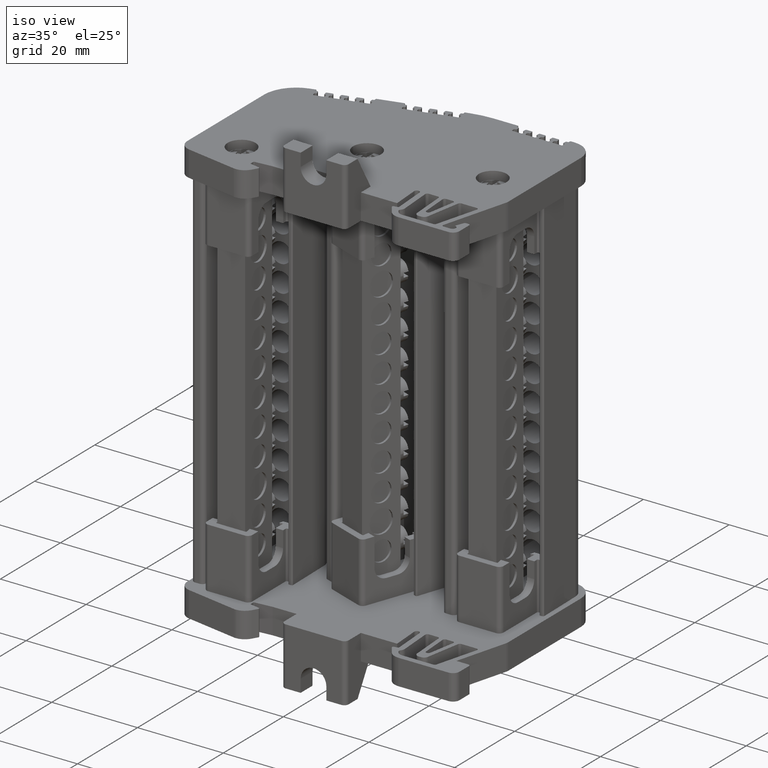
[diagram: clean part render]
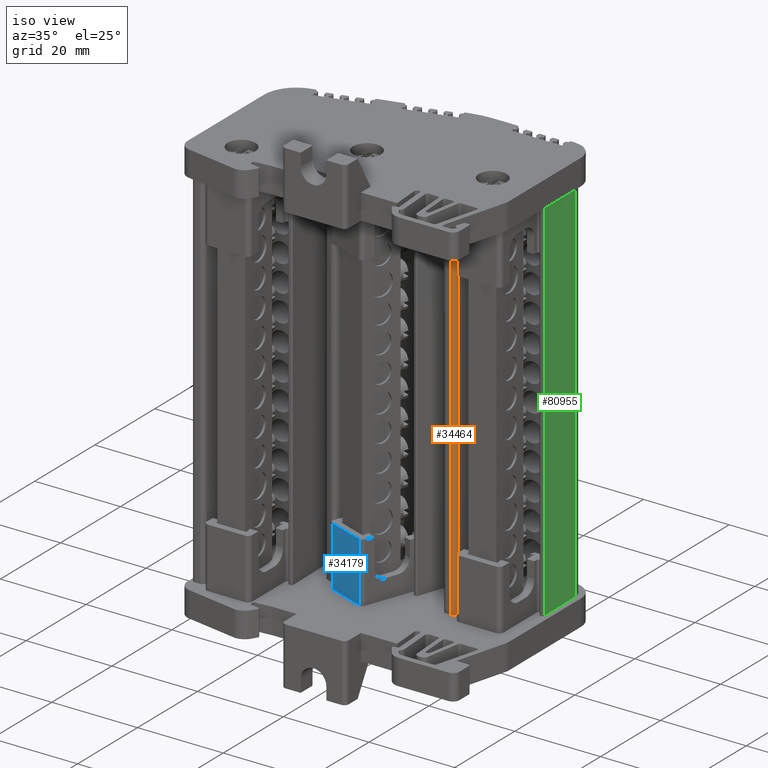
[diagram: same view with three faces highlighted in distinct colors, each labeled with its STEP entity id]
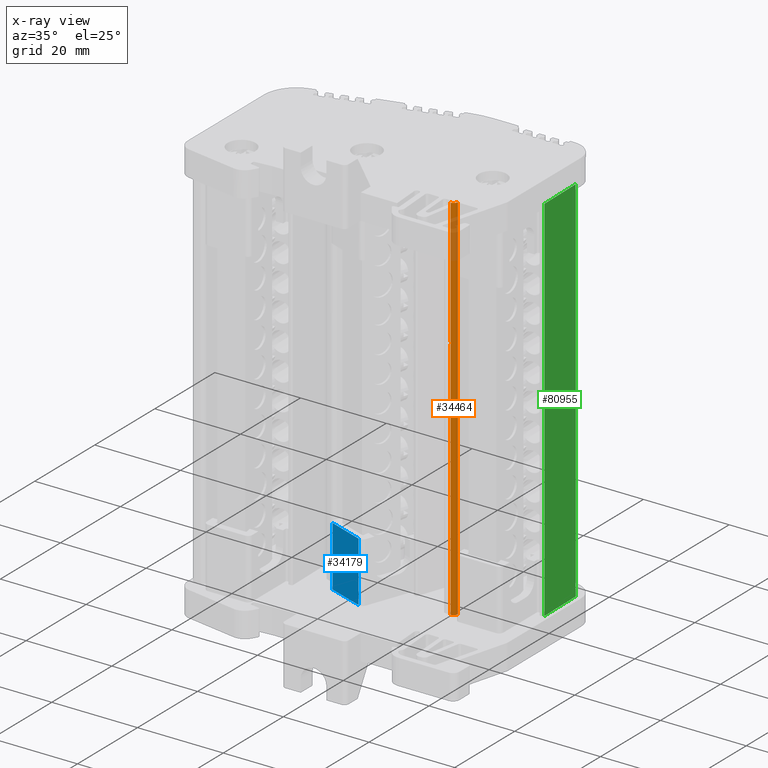
[diagram: x-ray of the same camera — body ghosted, the three highlighted faces saturated]
A machine part, iso view with three faces highlighted in distinct colors.
The next image is the same camera in x-ray (body ghosted, the three faces saturated) — at least one of them is partly hidden behind the body in this view.
Their STEP definitions:

[orange] entity #34464 — the highlighted cylindrical surface (edge-blend (fillet) strip) has radius 1.0034 mm, axis along (-0, -0, 1).
#7319 = CARTESIAN_POINT ( 'NONE',  ( -280.0525719823299900, 209.7134305445411500, 100.3119239351455100 ) ) ;
#7328 = CARTESIAN_POINT ( 'NONE',  ( -280.0525719823293100, 209.7134305445423800, 13.41293318655226800 ) ) ;
#9914 = VECTOR ( 'NONE', #23782, 1000.000000000000000 ) ;
#10150 = VECTOR ( 'NONE', #25322, 1000.000000000000000 ) ;
#10837 = CARTESIAN_POINT ( 'NONE',  ( -281.0557801778426200, 208.7275805964801800, 13.41293318655225700 ) ) ;
#10905 = CARTESIAN_POINT ( 'NONE',  ( -281.0557801778431900, 208.7275805964786500, 100.3119239351455700 ) ) ;
#10906 = CARTESIAN_POINT ( 'NONE',  ( -281.0557801778430200, 208.7275805964791900, 70.85366020682769800 ) ) ;
#10910 = CARTESIAN_POINT ( 'NONE',  ( -281.0470236038332200, 208.7275997017544900, 70.85366020682769800 ) ) ;
#13887 = CARTESIAN_POINT ( 'NONE',  ( -281.0557801778430200, 208.7275805964792100, 69.74610781466765300 ) ) ;
#23771 = LINE ( 'NONE', #23773, #9914 ) ;
#23773 = CARTESIAN_POINT ( 'NONE',  ( -281.0557801778428500, 208.7275805964796700, 45.35242454076613000 ) ) ;
#23782 = DIRECTION ( 'NONE',  ( 6.982962677686750300E-015, 1.604252062634165100E-014, -1.000000000000000000 ) ) ;
#24354 = CARTESIAN_POINT ( 'NONE',  ( -281.0499424155214600, 208.7275933335517900, 70.48447607610768300 ) ) ;
#24398 = CARTESIAN_POINT ( 'NONE',  ( -281.0470236038332200, 208.7275997017544900, 70.85366020682769800 ) ) ;
#24400 = CARTESIAN_POINT ( 'NONE',  ( -281.0557801778430200, 208.7275805964792100, 69.74610781466765300 ) ) ;
#24435 = CARTESIAN_POINT ( 'NONE',  ( -281.0528612966820700, 208.7275805964792700, 70.11529194538766800 ) ) ;
#25290 = CARTESIAN_POINT ( 'NONE',  ( -281.0557801778430200, 208.7275805964791900, 70.85366020682769800 ) ) ;
#25320 = LINE ( 'NONE', #25326, #10150 ) ;
#25322 = DIRECTION ( 'NONE',  ( 6.982962677686750300E-015, 1.604252062634165100E-014, -1.000000000000000000 ) ) ;
#25326 = CARTESIAN_POINT ( 'NONE',  ( -281.0557801778428500, 208.7275805964796700, 45.35242454076613000 ) ) ;
#25346 = CARTESIAN_POINT ( 'NONE',  ( -281.0470236038332200, 208.7275997017544900, 70.85366020682769800 ) ) ;
#25405 = CARTESIAN_POINT ( 'NONE',  ( -281.0499424155214600, 208.7275933335517700, 70.85366020682769800 ) ) ;
#25414 = CARTESIAN_POINT ( 'NONE',  ( -281.0528612966820700, 208.7275805964792400, 70.85366020682769800 ) ) ;
#34464 = ADVANCED_FACE ( 'NONE', ( #117636 ), #117706, .T. ) ;
#37848 = ORIENTED_EDGE ( 'NONE', *, *, #111759, .T. ) ;
#37949 = ORIENTED_EDGE ( 'NONE', *, *, #77962, .T. ) ;
#37985 = ORIENTED_EDGE ( 'NONE', *, *, #111773, .T. ) ;
#38044 = ORIENTED_EDGE ( 'NONE', *, *, #111663, .F. ) ;
#38047 = ORIENTED_EDGE ( 'NONE', *, *, #78213, .T. ) ;
#38050 = ORIENTED_EDGE ( 'NONE', *, *, #77824, .T. ) ;
#38146 = ORIENTED_EDGE ( 'NONE', *, *, #78232, .T. ) ;
#40191 = VECTOR ( 'NONE', #44104, 1000.000000000000000 ) ;
#40358 = CIRCLE ( 'NONE', #40361, 1.003361012255010700 ) ;
#40361 = AXIS2_PLACEMENT_3D ( 'NONE', #40683, #41513, #44596 ) ;
#40362 = CIRCLE ( 'NONE', #40379, 1.003361012255010700 ) ;
#40379 = AXIS2_PLACEMENT_3D ( 'NONE', #44602, #44637, #44624 ) ;
#40683 = CARTESIAN_POINT ( 'NONE',  ( -281.0557801778431900, 209.7309416087337900, 100.3119239351455100 ) ) ;
#41513 = DIRECTION ( 'NONE',  ( 6.982962677686750300E-015, 1.604252062634165100E-014, -1.000000000000000000 ) ) ;
#44096 = LINE ( 'NONE', #44099, #40191 ) ;
#44099 = CARTESIAN_POINT ( 'NONE',  ( -280.0525719823295400, 209.7134305445421800, 45.35242454076614400 ) ) ;
#44104 = DIRECTION ( 'NONE',  ( 6.700897813688197000E-015, -1.169646064375975000E-016, -1.000000000000000000 ) ) ;
#44596 = DIRECTION ( 'NONE',  ( 0.0000000000000000000, -1.000000000000000000, -1.383130063687119500E-014 ) ) ;
#44602 = CARTESIAN_POINT ( 'NONE',  ( -281.0557801778426200, 209.7309416087351800, 13.41293318655227500 ) ) ;
#44624 = DIRECTION ( 'NONE',  ( 0.0000000000000000000, -1.000000000000000000, -1.556021321648009500E-014 ) ) ;
#44637 = DIRECTION ( 'NONE',  ( -6.982962677686750300E-015, -1.604252062634165100E-014, 1.000000000000000000 ) ) ;
#55536 = EDGE_LOOP ( 'NONE', ( #38044, #37848, #38047, #38146, #37949, #38050, #37985 ) ) ;
#62376 = VERTEX_POINT ( 'NONE', #7319 ) ;
#62380 = VERTEX_POINT ( 'NONE', #7328 ) ;
#69933 = VERTEX_POINT ( 'NONE', #10837 ) ;
#69986 = VERTEX_POINT ( 'NONE', #10910 ) ;
#70048 = VERTEX_POINT ( 'NONE', #10905 ) ;
#70074 = VERTEX_POINT ( 'NONE', #10906 ) ;
#70259 = VERTEX_POINT ( 'NONE', #13887 ) ;
#77824 = EDGE_CURVE ( 'NONE', #70259, #69933, #23771, .T. ) ;
#77962 = EDGE_CURVE ( 'NONE', #69986, #70259, #120367, .T. ) ;
#78213 = EDGE_CURVE ( 'NONE', #70048, #70074, #25320, .T. ) ;
#78232 = EDGE_CURVE ( 'NONE', #70074, #69986, #120353, .T. ) ;
#84949 = AXIS2_PLACEMENT_3D ( 'NONE', #117742, #117756, #117740 ) ;
#111663 = EDGE_CURVE ( 'NONE', #62376, #62380, #44096, .T. ) ;
#111759 = EDGE_CURVE ( 'NONE', #62376, #70048, #40358, .T. ) ;
#111773 = EDGE_CURVE ( 'NONE', #69933, #62380, #40362, .T. ) ;
#117636 = FACE_OUTER_BOUND ( 'NONE', #55536, .T. ) ;
#117706 = CYLINDRICAL_SURFACE ( 'NONE', #84949, 1.003361012255010700 ) ;
#117740 = DIRECTION ( 'NONE',  ( 0.0000000000000000000, -1.000000000000000000, -1.383130063687119500E-014 ) ) ;
#117742 = CARTESIAN_POINT ( 'NONE',  ( -281.0557801778428500, 209.7309416087346700, 45.35242454076614400 ) ) ;
#117756 = DIRECTION ( 'NONE',  ( -6.982962677686750300E-015, -1.604252062634165100E-014, 1.000000000000000000 ) ) ;
#120353 = B_SPLINE_CURVE_WITH_KNOTS ( 'NONE', 3,
 ( #25290, #25414, #25405, #25346 ),
 .UNSPECIFIED., .F., .F.,
 ( 4, 4 ),
 ( 0.0000000000000000000, 1.000000000000000000 ),
 .UNSPECIFIED. ) ;
#120367 = B_SPLINE_CURVE_WITH_KNOTS ( 'NONE', 3,
 ( #24398, #24354, #24435, #24400 ),
 .UNSPECIFIED., .F., .F.,
 ( 4, 4 ),
 ( 0.0000000000000000000, 1.000000000000000000 ),
 .UNSPECIFIED. ) ;

[blue] entity #34179 — the highlighted planar face has unit normal (-0.342, -0.9397, 0).
#4305 = DIRECTION ( 'NONE',  ( -0.3420192031324216800, -0.9396929629877321900, 3.451266460341927100E-031 ) ) ;
#4308 = DIRECTION ( 'NONE',  ( 0.9396929629877320800, -0.3420192031324216200, 0.0000000000000000000 ) ) ;
#4326 = FACE_OUTER_BOUND ( 'NONE', #55653, .T. ) ;
#4337 = PLANE ( 'NONE',  #84864 ) ;
#4378 = CARTESIAN_POINT ( 'NONE',  ( -331.9373524519304500, 214.5551479919166400, 13.41293318655280200 ) ) ;
#6710 = CARTESIAN_POINT ( 'NONE',  ( -306.0936225841660400, 205.1488288605710300, 13.41293318655217900 ) ) ;
#6815 = CARTESIAN_POINT ( 'NONE',  ( -306.0936225841659300, 205.1488288605708900, 27.43149045965977400 ) ) ;
#7288 = CARTESIAN_POINT ( 'NONE',  ( -298.0033134319624500, 202.2042063101010000, 27.43149045965977700 ) ) ;
#7363 = CARTESIAN_POINT ( 'NONE',  ( -298.0033134319624500, 202.2042063101010000, 13.41293318655218400 ) ) ;
#31986 = VECTOR ( 'NONE', #122439, 1000.000000000000000 ) ;
#32801 = DIRECTION ( 'NONE',  ( 0.9396929629877320800, -0.3420192031324216200, 0.0000000000000000000 ) ) ;
#32848 = LINE ( 'NONE', #32862, #87804 ) ;
#32862 = CARTESIAN_POINT ( 'NONE',  ( -331.9373524519304500, 214.5551479919166400, 13.41293318655220500 ) ) ;
#34179 = ADVANCED_FACE ( 'NONE', ( #4326 ), #4337, .T. ) ;
#39458 = VECTOR ( 'NONE', #40585, 1000.000000000000100 ) ;
#39596 = VECTOR ( 'NONE', #43548, 1000.000000000000000 ) ;
#40582 = LINE ( 'NONE', #40584, #39458 ) ;
#40584 = CARTESIAN_POINT ( 'NONE',  ( -331.9373524519304500, 214.5551479919166400, 27.43149045965977000 ) ) ;
#40585 = DIRECTION ( 'NONE',  ( -0.9396929629877320800, 0.3420192031324216200, -0.0000000000000000000 ) ) ;
#43533 = CARTESIAN_POINT ( 'NONE',  ( -298.0033134319624500, 202.2042063101010600, 13.41293318655280200 ) ) ;
#43548 = DIRECTION ( 'NONE',  ( 1.180399404563799200E-031, 3.243130806178887600E-031, 1.000000000000000000 ) ) ;
#43554 = LINE ( 'NONE', #43533, #39596 ) ;
#55653 = EDGE_LOOP ( 'NONE', ( #109779, #109770, #109739, #109777 ) ) ;
#59447 = VERTEX_POINT ( 'NONE', #6710 ) ;
#59642 = VERTEX_POINT ( 'NONE', #6815 ) ;
#62313 = VERTEX_POINT ( 'NONE', #7288 ) ;
#62364 = VERTEX_POINT ( 'NONE', #7363 ) ;
#84072 = EDGE_CURVE ( 'NONE', #59642, #59447, #122446, .T. ) ;
#84864 = AXIS2_PLACEMENT_3D ( 'NONE', #4378, #4305, #4308 ) ;
#87804 = VECTOR ( 'NONE', #32801, 1000.000000000000100 ) ;
#104194 = EDGE_CURVE ( 'NONE', #59447, #62364, #32848, .T. ) ;
#109739 = ORIENTED_EDGE ( 'NONE', *, *, #104194, .T. ) ;
#109770 = ORIENTED_EDGE ( 'NONE', *, *, #84072, .T. ) ;
#109777 = ORIENTED_EDGE ( 'NONE', *, *, #111513, .T. ) ;
#109779 = ORIENTED_EDGE ( 'NONE', *, *, #111437, .T. ) ;
#111437 = EDGE_CURVE ( 'NONE', #62313, #59642, #40582, .T. ) ;
#111513 = EDGE_CURVE ( 'NONE', #62364, #62313, #43554, .T. ) ;
#122415 = CARTESIAN_POINT ( 'NONE',  ( -306.0936225841659300, 205.1488288605709700, 13.41293318655280200 ) ) ;
#122439 = DIRECTION ( 'NONE',  ( -1.180399404563799200E-031, -3.243130806178887600E-031, -1.000000000000000000 ) ) ;
#122446 = LINE ( 'NONE', #122415, #31986 ) ;

[green] entity #80955 — the highlighted planar face has unit normal (0.9998, 0.0175, -0).
#7517 = CARTESIAN_POINT ( 'NONE',  ( -266.0590344645559100, 218.5356428966767100, 13.41293318655237200 ) ) ;
#7581 = CARTESIAN_POINT ( 'NONE',  ( -266.0590344645552800, 218.5356428966760200, 100.3119239351454600 ) ) ;
#7645 = CARTESIAN_POINT ( 'NONE',  ( -266.2446231779525200, 229.1680131662778300, 100.3119239351453600 ) ) ;
#7797 = CARTESIAN_POINT ( 'NONE',  ( -266.2446231779530900, 229.1680131662792200, 13.41293318655245900 ) ) ;
#15238 = VECTOR ( 'NONE', #31043, 1000.000000000000100 ) ;
#15361 = VECTOR ( 'NONE', #30409, 1000.000000000000000 ) ;
#21373 = AXIS2_PLACEMENT_3D ( 'NONE', #76809, #76863, #76804 ) ;
#30329 = CARTESIAN_POINT ( 'NONE',  ( -266.0590344645548300, 218.5356428966763900, 176.8548958728887000 ) ) ;
#30345 = LINE ( 'NONE', #30329, #15361 ) ;
#30409 = DIRECTION ( 'NONE',  ( -6.700897813742073800E-015, -1.169646064160823000E-016, -1.000000000000000000 ) ) ;
#30997 = CARTESIAN_POINT ( 'NONE',  ( -266.0590344645553400, 218.5356428966772500, 100.3119239351454200 ) ) ;
#31043 = DIRECTION ( 'NONE',  ( 0.01745240643726309400, -0.9998476951563914900, -0.0000000000000000000 ) ) ;
#31062 = LINE ( 'NONE', #30997, #15238 ) ;
#32996 = LINE ( 'NONE', #32998, #87907 ) ;
#32998 = CARTESIAN_POINT ( 'NONE',  ( -266.2446231779526300, 229.1680131662771800, 176.8548958728891900 ) ) ;
#33025 = DIRECTION ( 'NONE',  ( -6.982962677686110500E-015, 1.604252062634190000E-014, -1.000000000000000000 ) ) ;
#33200 = DIRECTION ( 'NONE',  ( -0.01745240643726309400, 0.9998476951563914900, 0.0000000000000000000 ) ) ;
#33243 = CARTESIAN_POINT ( 'NONE',  ( -266.0590344645559100, 218.5356428966772200, 13.41293318655237200 ) ) ;
#33257 = LINE ( 'NONE', #33243, #88030 ) ;
#36136 = ORIENTED_EDGE ( 'NONE', *, *, #104264, .F. ) ;
#36169 = ORIENTED_EDGE ( 'NONE', *, *, #103758, .T. ) ;
#36190 = ORIENTED_EDGE ( 'NONE', *, *, #104304, .T. ) ;
#36199 = ORIENTED_EDGE ( 'NONE', *, *, #103606, .T. ) ;
#55728 = EDGE_LOOP ( 'NONE', ( #36199, #36190, #36136, #36169 ) ) ;
#62511 = VERTEX_POINT ( 'NONE', #7581 ) ;
#62521 = VERTEX_POINT ( 'NONE', #7517 ) ;
#62561 = VERTEX_POINT ( 'NONE', #7645 ) ;
#62677 = VERTEX_POINT ( 'NONE', #7797 ) ;
#76804 = DIRECTION ( 'NONE',  ( -0.01745240643726309400, 0.9998476951563914900, 0.0000000000000000000 ) ) ;
#76809 = CARTESIAN_POINT ( 'NONE',  ( -266.0590344645548300, 218.5356428966772500, 176.8548958728887000 ) ) ;
#76837 = PLANE ( 'NONE',  #21373 ) ;
#76861 = FACE_OUTER_BOUND ( 'NONE', #55728, .T. ) ;
#76863 = DIRECTION ( 'NONE',  ( 0.9998476951563916000, 0.01745240643726309700, -6.701918548398464200E-015 ) ) ;
#80955 = ADVANCED_FACE ( 'NONE', ( #76861 ), #76837, .T. ) ;
#87907 = VECTOR ( 'NONE', #33025, 1000.000000000000000 ) ;
#88030 = VECTOR ( 'NONE', #33200, 1000.000000000000100 ) ;
#103606 = EDGE_CURVE ( 'NONE', #62511, #62521, #30345, .T. ) ;
#103758 = EDGE_CURVE ( 'NONE', #62561, #62511, #31062, .T. ) ;
#104264 = EDGE_CURVE ( 'NONE', #62561, #62677, #32996, .T. ) ;
#104304 = EDGE_CURVE ( 'NONE', #62521, #62677, #33257, .T. ) ;